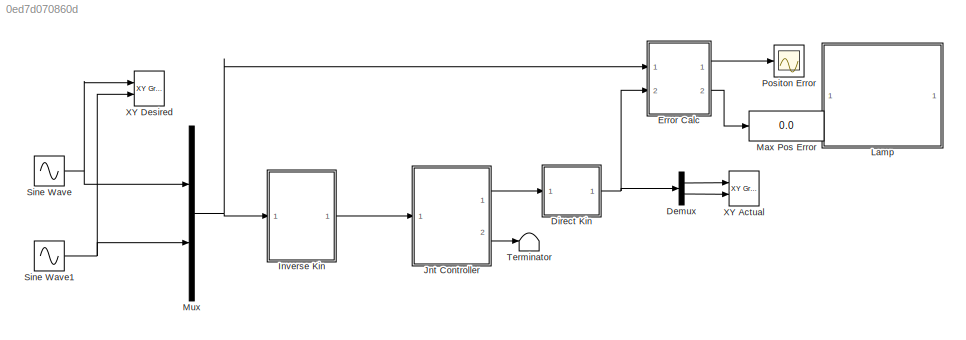
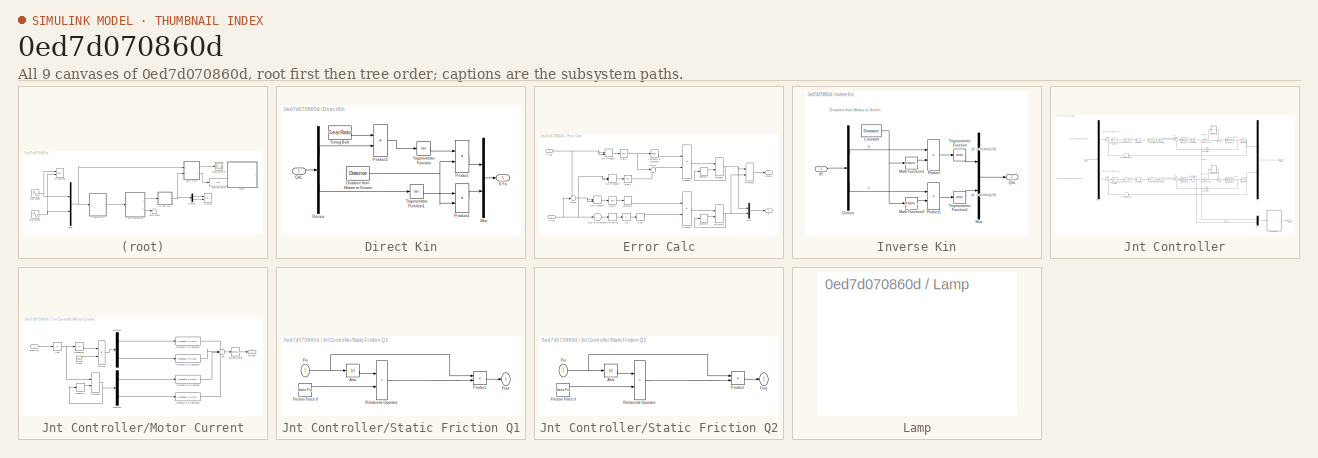
[diagram: thumbnail index - all 9 canvases of the model, root first then tree order]
MODEL slx_0ed7d070860d
KIND model
CONFIG AbsTol = auto
CONFIG EnableMultiTasking = off
CONFIG FixedStep = auto
CONFIG MaxStep = auto
CONFIG MinStep = auto
CONFIG RelTol = 1e-3
CONFIG SampleTimeConstraint = Unconstrained
CONFIG Solver = VariableStepAuto
CONFIG SolverName = VariableStepAuto
CONFIG StartTime = 0.0
CONFIG StopTime = 10.0
BLOCK [Demux] Demux
  DisplayOption = bar
  Outputs = 2
  Ports = [1, 2]
BLOCK [SubSystem] Direct Kin
  Ports = [1, 1]
  RequestExecContextInheritance = off
  Variant = off
BLOCK [Demux] Direct Kin/Demux
  DisplayOption = bar
  Outputs = 2
  Ports = [1, 2]
BLOCK [Constant] Direct Kin/Distance from Motors to Screen
  Value = Distance
BLOCK [Mux] Direct Kin/Mux
  DisplayOption = bar
  Inputs = 2
  Ports = [2, 1]
BLOCK [Product] Direct Kin/Product
  InputSameDT = off
  OutDataTypeStr = Inherit: Inherit via internal rule
  Ports = [2, 1]
  RndMeth = Floor
  SaturateOnIntegerOverflow = off
BLOCK [Product] Direct Kin/Product1
  InputSameDT = off
  OutDataTypeStr = Inherit: Inherit via internal rule
  Ports = [2, 1]
  RndMeth = Floor
  SaturateOnIntegerOverflow = off
BLOCK [Product] Direct Kin/Product2
  InputSameDT = off
  OutDataTypeStr = Inherit: Inherit via internal rule
  Ports = [2, 1]
  RndMeth = Floor
  SaturateOnIntegerOverflow = off
BLOCK [Inport] Direct Kin/QaL
  IconDisplay = Port number
BLOCK [Constant] Direct Kin/Timing Belt
  Value = GearRatio
BLOCK [Trigonometry] Direct Kin/Trigonometric Function
  Operator = tan
  Ports = [1, 1]
BLOCK [Trigonometry] Direct Kin/Trigonometric Function1
  Operator = tan
  Ports = [1, 1]
BLOCK [Outport] Direct Kin/XYa
  IconDisplay = Port number
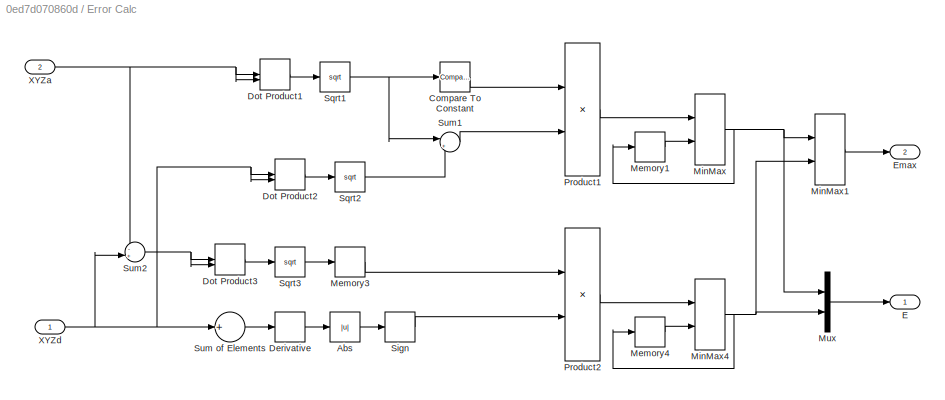
BLOCK [SubSystem] Error Calc
  Ports = [2, 2]
  RequestExecContextInheritance = off
  Variant = off
BLOCK [Abs] Error Calc/Abs
  SaturateOnIntegerOverflow = off
BLOCK [Reference] Error Calc/Compare To Constant  REF=simulink/Logic and Bit
Operations/Compare
To Constant
  Ports = [1, 1]
  SourceBlock = simulink/Logic and Bit\nOperations/Compare\nTo Constant
  SourceProductBaseCode = SL
  SourceProductName = Simulink
  SourceType = Compare To Constant
BLOCK [Derivative] Error Calc/Derivative
BLOCK [DotProduct] Error Calc/Dot Product1
  OutDataTypeStr = Inherit: Inherit via internal rule
BLOCK [DotProduct] Error Calc/Dot Product2
  OutDataTypeStr = Inherit: Inherit via internal rule
BLOCK [DotProduct] Error Calc/Dot Product3
  OutDataTypeStr = Inherit: Inherit via internal rule
BLOCK [Outport] Error Calc/E
  IconDisplay = Port number
BLOCK [Outport] Error Calc/Emax
  IconDisplay = Port number
  Port = 2
BLOCK [Memory] Error Calc/Memory1
BLOCK [Memory] Error Calc/Memory3
BLOCK [Memory] Error Calc/Memory4
BLOCK [MinMax] Error Calc/MinMax
  Function = max
  InputSameDT = off
  Inputs = 2
  Ports = [2, 1]
  SaturateOnIntegerOverflow = off
BLOCK [MinMax] Error Calc/MinMax1
  Function = max
  InputSameDT = off
  Inputs = 2
  Ports = [2, 1]
  SaturateOnIntegerOverflow = off
BLOCK [MinMax] Error Calc/MinMax4
  Function = max
  InputSameDT = off
  Inputs = 2
  Ports = [2, 1]
  SaturateOnIntegerOverflow = off
BLOCK [Mux] Error Calc/Mux
  DisplayOption = bar
  Inputs = 2
  Ports = [2, 1]
BLOCK [Product] Error Calc/Product1
  InputSameDT = off
  OutDataTypeStr = Inherit: Inherit via internal rule
  Ports = [2, 1]
  RndMeth = Floor
  SaturateOnIntegerOverflow = off
BLOCK [Product] Error Calc/Product2
  InputSameDT = off
  OutDataTypeStr = Inherit: Inherit via internal rule
  Ports = [2, 1]
  RndMeth = Floor
  SaturateOnIntegerOverflow = off
BLOCK [Signum] Error Calc/Sign
BLOCK [Sqrt] Error Calc/Sqrt1
BLOCK [Sqrt] Error Calc/Sqrt2
BLOCK [Sqrt] Error Calc/Sqrt3
BLOCK [Sum] Error Calc/Sum of Elements
  InputSameDT = off
  Inputs = +
  OutDataTypeStr = Inherit: Inherit via internal rule
  Ports = [1, 1]
  SaturateOnIntegerOverflow = off
BLOCK [Sum] Error Calc/Sum1
  IconShape = round
  InputSameDT = off
  Inputs = |+-
  OutDataTypeStr = Inherit: Inherit via internal rule
  Ports = [2, 1]
  SaturateOnIntegerOverflow = off
BLOCK [Sum] Error Calc/Sum2
  IconShape = round
  InputSameDT = off
  Inputs = -+|
  OutDataTypeStr = Inherit: Inherit via internal rule
  Ports = [2, 1]
  SaturateOnIntegerOverflow = off
BLOCK [Inport] Error Calc/XYZa
  IconDisplay = Port number
  Port = 2
BLOCK [Inport] Error Calc/XYZd
  IconDisplay = Port number
BLOCK [SubSystem] Inverse Kin
  Ports = [1, 1]
  RequestExecContextInheritance = off
  Variant = off
BLOCK [Constant] Inverse Kin/Constant
  Value = Distance
BLOCK [Demux] Inverse Kin/Demux
  DisplayOption = bar
  Outputs = 2
  Ports = [1, 2]
BLOCK [Math] Inverse Kin/Math Function3
  Operator = reciprocal
  Ports = [1, 1]
BLOCK [Math] Inverse Kin/Math Function4
  Operator = reciprocal
  Ports = [1, 1]
BLOCK [Mux] Inverse Kin/Mux
  DisplayOption = bar
  Inputs = 2
  Ports = [2, 1]
BLOCK [Product] Inverse Kin/Product
  InputSameDT = off
  OutDataTypeStr = Inherit: Inherit via internal rule
  Ports = [2, 1]
  RndMeth = Floor
  SaturateOnIntegerOverflow = off
BLOCK [Product] Inverse Kin/Product1
  InputSameDT = off
  OutDataTypeStr = Inherit: Inherit via internal rule
  Ports = [2, 1]
  RndMeth = Floor
  SaturateOnIntegerOverflow = off
BLOCK [Outport] Inverse Kin/QaL
  IconDisplay = Port number
BLOCK [Trigonometry] Inverse Kin/Trigonometric Function
  Operator = atan
  Ports = [1, 1]
BLOCK [Trigonometry] Inverse Kin/Trigonometric Function1
  Operator = atan
  Ports = [1, 1]
BLOCK [Inport] Inverse Kin/XY
  IconDisplay = Port number
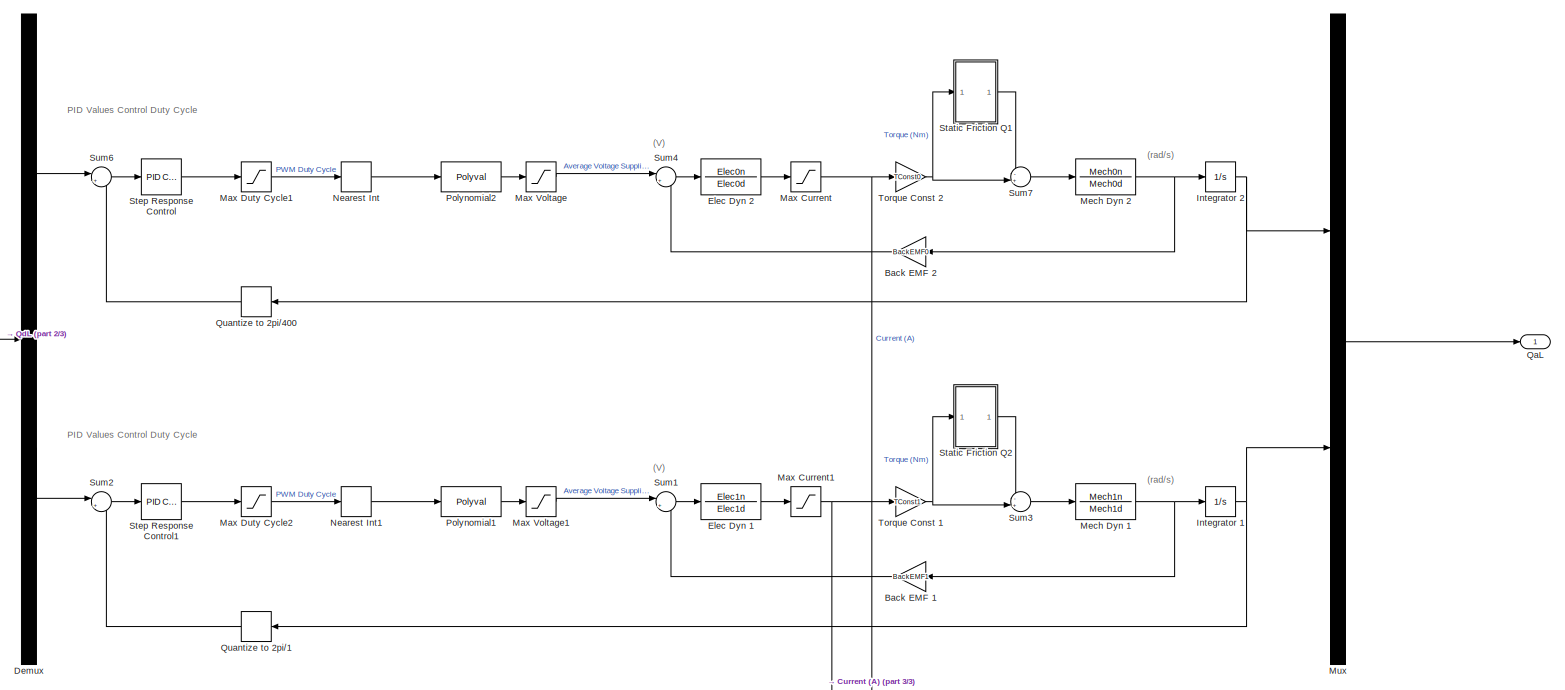
[diagram: Jnt Controller - part 1/3, full width, middle band]
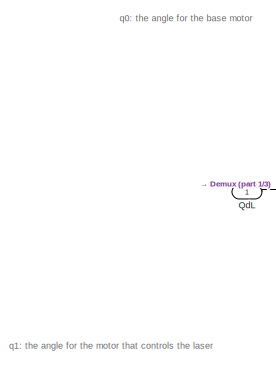
[diagram: Jnt Controller - part 2/3, middle left region]
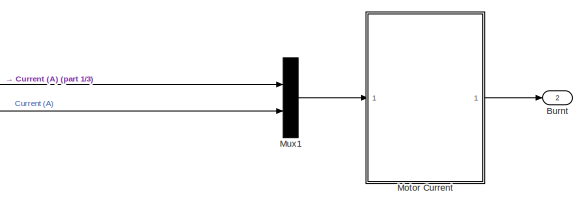
[diagram: Jnt Controller - part 3/3, bottom right region]
BLOCK [SubSystem] Jnt Controller
  Ports = [1, 2]
  RequestExecContextInheritance = off
  Variant = off
BLOCK [Gain] Jnt Controller/Back EMF 1
  Gain = BackEMF1
  OutDataTypeStr = Inherit: Inherit via internal rule
  ParamDataTypeStr = Inherit: Inherit via internal rule
  SaturateOnIntegerOverflow = off
BLOCK [Gain] Jnt Controller/Back EMF 2
  Gain = BackEMF0
  OutDataTypeStr = Inherit: Inherit via internal rule
  ParamDataTypeStr = Inherit: Inherit via internal rule
  SaturateOnIntegerOverflow = off
BLOCK [Outport] Jnt Controller/Burnt
  IconDisplay = Port number
  Port = 2
BLOCK [Demux] Jnt Controller/Demux
  DisplayOption = bar
  Outputs = 2
  Ports = [1, 2]
BLOCK [TransferFcn] Jnt Controller/Elec Dyn 1
  Denominator = Elec1d
  Numerator = Elec1n
BLOCK [TransferFcn] Jnt Controller/Elec Dyn 2
  Denominator = Elec0d
  Numerator = Elec0n
BLOCK [Integrator] Jnt Controller/Integrator 1
  Ports = [1, 1]
BLOCK [Integrator] Jnt Controller/Integrator 2
  Ports = [1, 1]
BLOCK [Saturate] Jnt Controller/Max Current
  InputPortMap = u0
  LowerLimit = -1
  Ports = [1, 1]
  UpperLimit = 1
BLOCK [Saturate] Jnt Controller/Max Current1
  InputPortMap = u0
  LowerLimit = -1
  Ports = [1, 1]
  UpperLimit = 1
BLOCK [Saturate] Jnt Controller/Max Duty Cycle1
  InputPortMap = u0
  LowerLimit = -255
  Ports = [1, 1]
  UpperLimit = 255
BLOCK [Saturate] Jnt Controller/Max Duty Cycle2
  InputPortMap = u0
  LowerLimit = -255
  Ports = [1, 1]
  UpperLimit = 255
BLOCK [Saturate] Jnt Controller/Max Voltage
  InputPortMap = u0
  LowerLimit = -AmpSat1
  Ports = [1, 1]
  UpperLimit = AmpSat1
BLOCK [Saturate] Jnt Controller/Max Voltage1
  InputPortMap = u0
  LowerLimit = -AmpSat1
  Ports = [1, 1]
  UpperLimit = AmpSat1
BLOCK [TransferFcn] Jnt Controller/Mech Dyn 1
  Denominator = Mech1d
  Numerator = Mech1n
BLOCK [TransferFcn] Jnt Controller/Mech Dyn 2
  Denominator = Mech0d
  Numerator = Mech0n
BLOCK [SubSystem] Jnt Controller/Motor Current
  Ports = [1, 1]
  RequestExecContextInheritance = off
  Variant = off
BLOCK [Abs] Jnt Controller/Motor Current/Abs
  SaturateOnIntegerOverflow = off
BLOCK [Outport] Jnt Controller/Motor Current/Burned
  IconDisplay = Port number
BLOCK [Reference] Jnt Controller/Motor Current/Burned Motor  REF=simulink/Logic and Bit
Operations/Compare
To Zero
  Ports = [1, 1]
  SourceBlock = simulink/Logic and Bit\nOperations/Compare\nTo Zero
  SourceProductBaseCode = SL
  SourceProductName = Simulink
  SourceType = Compare To Zero
BLOCK [Clock] Jnt Controller/Motor Current/Clock
BLOCK [Reference] Jnt Controller/Motor Current/Compare To Constant  REF=simulink/Logic and Bit
Operations/Compare
To Constant
  Ports = [1, 1]
  SourceBlock = simulink/Logic and Bit\nOperations/Compare\nTo Constant
  SourceProductBaseCode = SL
  SourceProductName = Simulink
  SourceType = Compare To Constant
BLOCK [Reference] Jnt Controller/Motor Current/Compare To Constant1  REF=simulink/Logic and Bit
Operations/Compare
To Constant
  Ports = [1, 1]
  SourceBlock = simulink/Logic and Bit\nOperations/Compare\nTo Constant
  SourceProductBaseCode = SL
  SourceProductName = Simulink
  SourceType = Compare To Constant
BLOCK [Reference] Jnt Controller/Motor Current/Compare To Constant2  REF=simulink/Logic and Bit
Operations/Compare
To Constant
  Ports = [1, 1]
  SourceBlock = simulink/Logic and Bit\nOperations/Compare\nTo Constant
  SourceProductBaseCode = SL
  SourceProductName = Simulink
  SourceType = Compare To Constant
BLOCK [Reference] Jnt Controller/Motor Current/Compare To Constant3  REF=simulink/Logic and Bit
Operations/Compare
To Constant
  Ports = [1, 1]
  SourceBlock = simulink/Logic and Bit\nOperations/Compare\nTo Constant
  SourceProductBaseCode = SL
  SourceProductName = Simulink
  SourceType = Compare To Constant
BLOCK [Demux] Jnt Controller/Motor Current/Demux1
  DisplayOption = bar
  Outputs = 2
  Ports = [1, 2]
BLOCK [Demux] Jnt Controller/Motor Current/Demux2
  DisplayOption = bar
  Outputs = 2
  Ports = [1, 2]
BLOCK [Product] Jnt Controller/Motor Current/Divide
  InputSameDT = off
  Inputs = */
  OutDataTypeStr = Inherit: Inherit via internal rule
  Ports = [2, 1]
  RndMeth = Floor
  SaturateOnIntegerOverflow = off
BLOCK [Integrator] Jnt Controller/Motor Current/Integrator
  Ports = [1, 1]
BLOCK [Memory] Jnt Controller/Motor Current/Memory2
BLOCK [MinMax] Jnt Controller/Motor Current/MinMax1
  Function = max
  InputSameDT = off
  Inputs = 2
  Ports = [2, 1]
  SaturateOnIntegerOverflow = off
BLOCK [Inport] Jnt Controller/Motor Current/MotCurr
  IconDisplay = Port number
BLOCK [Sum] Jnt Controller/Motor Current/Sum
  IconShape = round
  InputSameDT = off
  Inputs = ++++
  OutDataTypeStr = Inherit: Inherit via internal rule
  Ports = [4, 1]
  SaturateOnIntegerOverflow = off
BLOCK [Mux] Jnt Controller/Mux
  DisplayOption = bar
  Inputs = 2
  Ports = [2, 1]
BLOCK [Mux] Jnt Controller/Mux1
  DisplayOption = bar
  Inputs = 2
  Ports = [2, 1]
BLOCK [Quantizer] Jnt Controller/Nearest Int
  QuantizationInterval = 1
BLOCK [Quantizer] Jnt Controller/Nearest Int1
  QuantizationInterval = 1
BLOCK [Polyval] Jnt Controller/Polynomial1
  Coefs = PWMConversion
BLOCK [Polyval] Jnt Controller/Polynomial2
  Coefs = PWMConversion
BLOCK [Outport] Jnt Controller/QaL
  IconDisplay = Port number
BLOCK [Inport] Jnt Controller/QdL
  IconDisplay = Port number
BLOCK [Quantizer] Jnt Controller/Quantize to 2pi//1
  QuantizationInterval = 2*pi/400
BLOCK [Quantizer] Jnt Controller/Quantize to 2pi//400
  QuantizationInterval = 2*pi/400
BLOCK [SubSystem] Jnt Controller/Static Friction Q1
  Ports = [1, 1]
  RequestExecContextInheritance = off
  Variant = off
BLOCK [Abs] Jnt Controller/Static Friction Q1/Abs
  SaturateOnIntegerOverflow = off
BLOCK [Inport] Jnt Controller/Static Friction Q1/Fin
  IconDisplay = Port number
BLOCK [Outport] Jnt Controller/Static Friction Q1/Fout
  IconDisplay = Port number
BLOCK [Constant] Jnt Controller/Static Friction Q1/Friction Force 0
  Value = StaticFric
BLOCK [Product] Jnt Controller/Static Friction Q1/Product
  InputSameDT = off
  OutDataTypeStr = Inherit: Inherit via internal rule
  Ports = [2, 1]
  RndMeth = Floor
  SaturateOnIntegerOverflow = off
BLOCK [RelationalOperator] Jnt Controller/Static Friction Q1/Relational Operator
  InputSameDT = off
  Operator = <
  OutDataTypeStr = boolean
  Ports = [2, 1]
  RndMeth = Simplest
BLOCK [SubSystem] Jnt Controller/Static Friction Q2
  Ports = [1, 1]
  RequestExecContextInheritance = off
  Variant = off
BLOCK [Abs] Jnt Controller/Static Friction Q2/Abs
  SaturateOnIntegerOverflow = off
BLOCK [Inport] Jnt Controller/Static Friction Q2/Fin
  IconDisplay = Port number
BLOCK [Outport] Jnt Controller/Static Friction Q2/Fout
  IconDisplay = Port number
BLOCK [Constant] Jnt Controller/Static Friction Q2/Friction Force 0
  Value = StaticFric
BLOCK [Product] Jnt Controller/Static Friction Q2/Product
  InputSameDT = off
  OutDataTypeStr = Inherit: Inherit via internal rule
  Ports = [2, 1]
  RndMeth = Floor
  SaturateOnIntegerOverflow = off
BLOCK [RelationalOperator] Jnt Controller/Static Friction Q2/Relational Operator
  InputSameDT = off
  Operator = <
  OutDataTypeStr = boolean
  Ports = [2, 1]
  RndMeth = Simplest
BLOCK [Reference] Jnt Controller/Step Response Control  REF=simulink/Continuous/PID Controller
  Ports = [1, 1]
  SourceBlock = simulink/Continuous/PID Controller
  SourceProductBaseCode = SL
  SourceProductName = Simulink
  SourceType = PID 1dof
BLOCK [Reference] Jnt Controller/Step Response Control1  REF=simulink/Continuous/PID Controller
  Ports = [1, 1]
  SourceBlock = simulink/Continuous/PID Controller
  SourceProductBaseCode = SL
  SourceProductName = Simulink
  SourceType = PID 1dof
BLOCK [Sum] Jnt Controller/Sum1
  IconShape = round
  InputSameDT = off
  Inputs = |+-
  OutDataTypeStr = Inherit: Inherit via internal rule
  Ports = [2, 1]
  SaturateOnIntegerOverflow = off
BLOCK [Sum] Jnt Controller/Sum2
  IconShape = round
  InputSameDT = off
  Inputs = |+-
  OutDataTypeStr = Inherit: Inherit via internal rule
  Ports = [2, 1]
  SaturateOnIntegerOverflow = off
BLOCK [Sum] Jnt Controller/Sum3
  IconShape = round
  InputSameDT = off
  Inputs = -+|
  OutDataTypeStr = Inherit: Inherit via internal rule
  Ports = [2, 1]
  SaturateOnIntegerOverflow = off
BLOCK [Sum] Jnt Controller/Sum4
  IconShape = round
  InputSameDT = off
  Inputs = |+-
  OutDataTypeStr = Inherit: Inherit via internal rule
  Ports = [2, 1]
  SaturateOnIntegerOverflow = off
BLOCK [Sum] Jnt Controller/Sum6
  IconShape = round
  InputSameDT = off
  Inputs = |+-
  OutDataTypeStr = Inherit: Inherit via internal rule
  Ports = [2, 1]
  SaturateOnIntegerOverflow = off
BLOCK [Sum] Jnt Controller/Sum7
  IconShape = round
  InputSameDT = off
  Inputs = -+|
  OutDataTypeStr = Inherit: Inherit via internal rule
  Ports = [2, 1]
  SaturateOnIntegerOverflow = off
BLOCK [Gain] Jnt Controller/Torque Const 1
  Gain = TConst1
  OutDataTypeStr = Inherit: Inherit via internal rule
  ParamDataTypeStr = Inherit: Inherit via internal rule
  SaturateOnIntegerOverflow = off
BLOCK [Gain] Jnt Controller/Torque Const 2
  Gain = TConst0
  OutDataTypeStr = Inherit: Inherit via internal rule
  ParamDataTypeStr = Inherit: Inherit via internal rule
  SaturateOnIntegerOverflow = off
BLOCK [SubSystem] Lamp
  DialogController = hmiCreateDDGDialog
  IsWebBlock = on
  MaskHideContents = on
  Ports = []
  RequestExecContextInheritance = off
  Variant = off
BLOCK [Display] Max Pos Error
  Decimation = 1
  Ports = [1]
BLOCK [Mux] Mux
  DisplayOption = bar
  Inputs = 2
  Ports = [2, 1]
BLOCK [Scope] Positon Error
  NumInputPorts = 1
  Ports = [1]
  ScopeSpecificationString = Simulink.scopes.TimeScopeBlockCfg('CurrentConfiguration', extmgr.ConfigurationSet(extmgr.Configuration('Core','General UI',true,'FigureColor',[1 1 1]),extmgr.Configuration('Core','Source UI',true),extmgr.Configuration('Sources','WiredSimulink',true,'DataLoggingSaveFormat','Array','DataLoggingDecimation','1','DataLoggingDecimateData',true),extmgr.Configuration('Visuals','Time Domain',true,'PlotType...<+2020ch>
BLOCK [Sin] Sine Wave
  Amplitude = 50
  Ports = [0, 1]
  SampleTime = 0
BLOCK [Sin] Sine Wave1
  Amplitude = 50
  Phase = pi/2
  Ports = [0, 1]
  SampleTime = 0
BLOCK [Terminator] Terminator
BLOCK [Reference] XY Actual   REF=simulink/Sinks/XY Graph
  Ports = [2]
  SourceBlock = simulink/Sinks/XY Graph
  SourceProductBaseCode = SL
  SourceProductName = Simulink
  SourceType = XY scope.
BLOCK [Reference] XY Desired  REF=simulink/Sinks/XY Graph
  Ports = [2]
  SourceBlock = simulink/Sinks/XY Graph
  SourceProductBaseCode = SL
  SourceProductName = Simulink
  SourceType = XY scope.
ANNOTATION Inverse Kin: Distance from Motors to Screen
ANNOTATION Inverse Kin: q0 = arctan(x/d)
ANNOTATION Inverse Kin: q1 = arctan(y/d)
ANNOTATION Jnt Controller: (V)
ANNOTATION Jnt Controller: (rad/s)
ANNOTATION Jnt Controller: PID Values Control Duty Cycle
ANNOTATION Jnt Controller: q0: the angle for the base motor
ANNOTATION Jnt Controller: q1: the angle for the motor that controls the laser
LINE Demux:1 -> XY Actual :1
LINE Demux:2 -> XY Actual :2
LINE Direct Kin/Demux:1 -> Direct Kin/Product2:2
LINE Direct Kin/Demux:2 -> Direct Kin/Trigonometric Function1:1
NET Direct Kin/Distance from Motors to Screen:1 -> Direct Kin/Product1:2, Direct Kin/Product:2
LINE Direct Kin/Mux:1 -> Direct Kin/XYa:1
LINE Direct Kin/Product1:1 -> Direct Kin/Mux:2
LINE Direct Kin/Product2:1 -> Direct Kin/Trigonometric Function:1
LINE Direct Kin/Product:1 -> Direct Kin/Mux:1
LINE Direct Kin/QaL:1 -> Direct Kin/Demux:1
LINE Direct Kin/Timing Belt:1 -> Direct Kin/Product2:1
LINE Direct Kin/Trigonometric Function1:1 -> Direct Kin/Product1:1
LINE Direct Kin/Trigonometric Function:1 -> Direct Kin/Product:1
NET Direct Kin:1 -> Demux:1, Error Calc:2
LINE Error Calc/Abs:1 -> Error Calc/Sign:1
LINE Error Calc/Compare To Constant:1 -> Error Calc/Product1:1
LINE Error Calc/Derivative:1 -> Error Calc/Abs:1
LINE Error Calc/Dot Product1:1 -> Error Calc/Sqrt1:1
LINE Error Calc/Dot Product2:1 -> Error Calc/Sqrt2:1
LINE Error Calc/Dot Product3:1 -> Error Calc/Sqrt3:1
LINE Error Calc/Memory1:1 -> Error Calc/MinMax:2
LINE Error Calc/Memory3:1 -> Error Calc/Product2:1
LINE Error Calc/Memory4:1 -> Error Calc/MinMax4:2
LINE Error Calc/MinMax1:1 -> Error Calc/Emax:1
NET Error Calc/MinMax4:1 -> Error Calc/Memory4:1, Error Calc/MinMax1:2, Error Calc/Mux:2
NET Error Calc/MinMax:1 -> Error Calc/Memory1:1, Error Calc/MinMax1:1, Error Calc/Mux:1
LINE Error Calc/Mux:1 -> Error Calc/E:1
LINE Error Calc/Product1:1 -> Error Calc/MinMax:1
LINE Error Calc/Product2:1 -> Error Calc/MinMax4:1
LINE Error Calc/Sign:1 -> Error Calc/Product2:2
NET Error Calc/Sqrt1:1 -> Error Calc/Compare To Constant:1, Error Calc/Sum1:1
LINE Error Calc/Sqrt2:1 -> Error Calc/Sum1:2
LINE Error Calc/Sqrt3:1 -> Error Calc/Memory3:1
LINE Error Calc/Sum of Elements:1 -> Error Calc/Derivative:1
LINE Error Calc/Sum1:1 -> Error Calc/Product1:2
NET Error Calc/Sum2:1 -> Error Calc/Dot Product3:1, Error Calc/Dot Product3:2
NET Error Calc/XYZa:1 -> Error Calc/Dot Product1:1, Error Calc/Dot Product1:2, Error Calc/Sum2:1
NET Error Calc/XYZd:1 -> Error Calc/Dot Product2:1, Error Calc/Dot Product2:2, Error Calc/Sum of Elements:1, Error Calc/Sum2:2
LINE Error Calc:1 -> Positon Error:1
LINE Error Calc:2 -> Max Pos Error:1
NET Inverse Kin/Constant:1 -> Inverse Kin/Math Function3:1, Inverse Kin/Math Function4:1
LINE Inverse Kin/Demux:1 -> Inverse Kin/Product:1
LINE Inverse Kin/Demux:2 -> Inverse Kin/Product1:1
LINE Inverse Kin/Math Function3:1 -> Inverse Kin/Product:2
LINE Inverse Kin/Math Function4:1 -> Inverse Kin/Product1:2
LINE Inverse Kin/Mux:1 -> Inverse Kin/QaL:1
LINE Inverse Kin/Product1:1 -> Inverse Kin/Trigonometric Function1:1
LINE Inverse Kin/Product:1 -> Inverse Kin/Trigonometric Function:1
LINE Inverse Kin/Trigonometric Function1:1 -> Inverse Kin/Mux:2
LINE Inverse Kin/Trigonometric Function:1 -> Inverse Kin/Mux:1
LINE Inverse Kin/XY:1 -> Inverse Kin/Demux:1
LINE Inverse Kin:1 -> Jnt Controller:1
LINE Jnt Controller/Back EMF 1:1 -> Jnt Controller/Sum1:2
LINE Jnt Controller/Back EMF 2:1 -> Jnt Controller/Sum4:2
LINE Jnt Controller/Demux:1 -> Jnt Controller/Sum6:1
LINE Jnt Controller/Demux:2 -> Jnt Controller/Sum2:1
LINE Jnt Controller/Elec Dyn 1:1 -> Jnt Controller/Max Current1:1
LINE Jnt Controller/Elec Dyn 2:1 -> Jnt Controller/Max Current:1
NET Jnt Controller/Integrator 1:1 -> Jnt Controller/Mux:2, Jnt Controller/Quantize to 2pi//1:1
NET Jnt Controller/Integrator 2:1 -> Jnt Controller/Mux:1, Jnt Controller/Quantize to 2pi//400:1
NET Jnt Controller/Max Current1:1 -> Jnt Controller/Mux1:2, Jnt Controller/Torque Const 1:1
NET Jnt Controller/Max Current:1 -> Jnt Controller/Mux1:1, Jnt Controller/Torque Const 2:1
LINE Jnt Controller/Max Duty Cycle1:1 -> Jnt Controller/Nearest Int:1
LINE Jnt Controller/Max Duty Cycle2:1 -> Jnt Controller/Nearest Int1:1
LINE Jnt Controller/Max Voltage1:1 -> Jnt Controller/Sum1:1
LINE Jnt Controller/Max Voltage:1 -> Jnt Controller/Sum4:1
NET Jnt Controller/Mech Dyn 1:1 -> Jnt Controller/Back EMF 1:1, Jnt Controller/Integrator 1:1
NET Jnt Controller/Mech Dyn 2:1 -> Jnt Controller/Back EMF 2:1, Jnt Controller/Integrator 2:1
NET Jnt Controller/Motor Current/Abs:1 -> Jnt Controller/Motor Current/Integrator:1, Jnt Controller/Motor Current/MinMax1:1
LINE Jnt Controller/Motor Current/Burned Motor:1 -> Jnt Controller/Motor Current/Burned:1
LINE Jnt Controller/Motor Current/Clock:1 -> Jnt Controller/Motor Current/Divide:2
LINE Jnt Controller/Motor Current/Compare To Constant1:1 -> Jnt Controller/Motor Current/Sum:1
LINE Jnt Controller/Motor Current/Compare To Constant2:1 -> Jnt Controller/Motor Current/Sum:2
LINE Jnt Controller/Motor Current/Compare To Constant3:1 -> Jnt Controller/Motor Current/Sum:4
LINE Jnt Controller/Motor Current/Compare To Constant:1 -> Jnt Controller/Motor Current/Sum:3
LINE Jnt Controller/Motor Current/Demux1:1 -> Jnt Controller/Motor Current/Compare To Constant1:1
LINE Jnt Controller/Motor Current/Demux1:2 -> Jnt Controller/Motor Current/Compare To Constant2:1
LINE Jnt Controller/Motor Current/Demux2:1 -> Jnt Controller/Motor Current/Compare To Constant:1
LINE Jnt Controller/Motor Current/Demux2:2 -> Jnt Controller/Motor Current/Compare To Constant3:1
LINE Jnt Controller/Motor Current/Divide:1 -> Jnt Controller/Motor Current/Demux1:1
LINE Jnt Controller/Motor Current/Integrator:1 -> Jnt Controller/Motor Current/Divide:1
LINE Jnt Controller/Motor Current/Memory2:1 -> Jnt Controller/Motor Current/MinMax1:2
NET Jnt Controller/Motor Current/MinMax1:1 -> Jnt Controller/Motor Current/Demux2:1, Jnt Controller/Motor Current/Memory2:1
LINE Jnt Controller/Motor Current/MotCurr:1 -> Jnt Controller/Motor Current/Abs:1
LINE Jnt Controller/Motor Current/Sum:1 -> Jnt Controller/Motor Current/Burned Motor:1
LINE Jnt Controller/Motor Current:1 -> Jnt Controller/Burnt:1
LINE Jnt Controller/Mux1:1 -> Jnt Controller/Motor Current:1
LINE Jnt Controller/Mux:1 -> Jnt Controller/QaL:1
LINE Jnt Controller/Nearest Int1:1 -> Jnt Controller/Polynomial1:1
LINE Jnt Controller/Nearest Int:1 -> Jnt Controller/Polynomial2:1
LINE Jnt Controller/Polynomial1:1 -> Jnt Controller/Max Voltage1:1
LINE Jnt Controller/Polynomial2:1 -> Jnt Controller/Max Voltage:1
LINE Jnt Controller/QdL:1 -> Jnt Controller/Demux:1
LINE Jnt Controller/Quantize to 2pi//1:1 -> Jnt Controller/Sum2:2
LINE Jnt Controller/Quantize to 2pi//400:1 -> Jnt Controller/Sum6:2
LINE Jnt Controller/Static Friction Q1/Abs:1 -> Jnt Controller/Static Friction Q1/Relational Operator:1
NET Jnt Controller/Static Friction Q1/Fin:1 -> Jnt Controller/Static Friction Q1/Abs:1, Jnt Controller/Static Friction Q1/Product:1
LINE Jnt Controller/Static Friction Q1/Friction Force 0:1 -> Jnt Controller/Static Friction Q1/Relational Operator:2
LINE Jnt Controller/Static Friction Q1/Product:1 -> Jnt Controller/Static Friction Q1/Fout:1
LINE Jnt Controller/Static Friction Q1/Relational Operator:1 -> Jnt Controller/Static Friction Q1/Product:2
LINE Jnt Controller/Static Friction Q1:1 -> Jnt Controller/Sum7:1
LINE Jnt Controller/Static Friction Q2/Abs:1 -> Jnt Controller/Static Friction Q2/Relational Operator:1
NET Jnt Controller/Static Friction Q2/Fin:1 -> Jnt Controller/Static Friction Q2/Abs:1, Jnt Controller/Static Friction Q2/Product:1
LINE Jnt Controller/Static Friction Q2/Friction Force 0:1 -> Jnt Controller/Static Friction Q2/Relational Operator:2
LINE Jnt Controller/Static Friction Q2/Product:1 -> Jnt Controller/Static Friction Q2/Fout:1
LINE Jnt Controller/Static Friction Q2/Relational Operator:1 -> Jnt Controller/Static Friction Q2/Product:2
LINE Jnt Controller/Static Friction Q2:1 -> Jnt Controller/Sum3:1
LINE Jnt Controller/Step Response Control1:1 -> Jnt Controller/Max Duty Cycle2:1
LINE Jnt Controller/Step Response Control:1 -> Jnt Controller/Max Duty Cycle1:1
LINE Jnt Controller/Sum1:1 -> Jnt Controller/Elec Dyn 1:1
LINE Jnt Controller/Sum2:1 -> Jnt Controller/Step Response Control1:1
LINE Jnt Controller/Sum3:1 -> Jnt Controller/Mech Dyn 1:1
LINE Jnt Controller/Sum4:1 -> Jnt Controller/Elec Dyn 2:1
LINE Jnt Controller/Sum6:1 -> Jnt Controller/Step Response Control:1
LINE Jnt Controller/Sum7:1 -> Jnt Controller/Mech Dyn 2:1
NET Jnt Controller/Torque Const 1:1 -> Jnt Controller/Static Friction Q2:1, Jnt Controller/Sum3:2
NET Jnt Controller/Torque Const 2:1 -> Jnt Controller/Static Friction Q1:1, Jnt Controller/Sum7:2
LINE Jnt Controller:1 -> Direct Kin:1
LINE Jnt Controller:2 -> Terminator:1
NET Mux:1 -> Error Calc:1, Inverse Kin:1
NET Sine Wave1:1 -> Mux:2, XY Desired:2
NET Sine Wave:1 -> Mux:1, XY Desired:1
note: NET lines group one-source signal fan-out (src -> all destinations, sorted); 1:1 wires keep LINE
